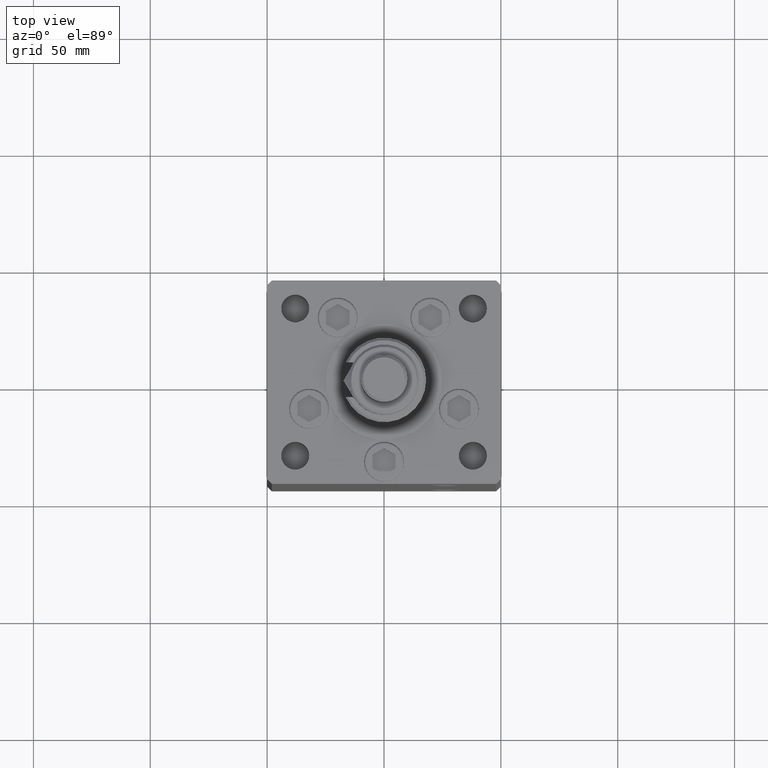
[diagram: clean part render]
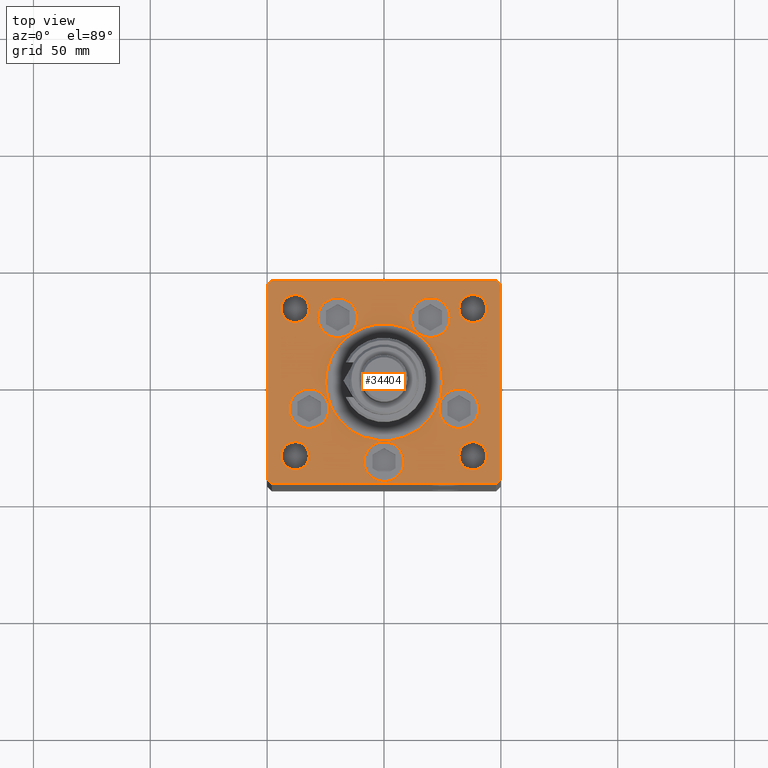
[diagram: same view with one face highlighted and labeled with its STEP entity id]
A machine part, top view. The second image highlights one B-rep face of the part: STEP entity #34404.
In plain terms, the highlighted planar face has unit normal (0, 0, 1).
Its self-contained STEP definition (entity closure, byte-faithful):
#55 = DIRECTION ( 'NONE',  ( -0.7071067811865512365, 0.7071067811865439090, 0.000000000000000000 ) ) ;
#674 = CARTESIAN_POINT ( 'NONE',  ( -38.00000000000000000, 31.50000000000000000, 0.000000000000000000 ) ) ;
#740 = ORIENTED_EDGE ( 'NONE', *, *, #35689, .F. ) ;
#1093 = CARTESIAN_POINT ( 'NONE',  ( -50.00000000000000000, -41.50000000000004263, 0.000000000000000000 ) ) ;
#1363 = CARTESIAN_POINT ( 'NONE',  ( -19.82068048781374969, 27.62499999999998934, 0.000000000000000000 ) ) ;
#1717 = EDGE_CURVE ( 'NONE', #27374, #19167, #29461, .T. ) ;
#1901 = AXIS2_PLACEMENT_3D ( 'NONE', #5175, #43513, #5451 ) ;
#2008 = FACE_BOUND ( 'NONE', #8713, .T. ) ;
#2461 = DIRECTION ( 'NONE',  ( 0.000000000000000000, 0.000000000000000000, 1.000000000000000000 ) ) ;
#2576 = VERTEX_POINT ( 'NONE', #2984 ) ;
#2713 = AXIS2_PLACEMENT_3D ( 'NONE', #16235, #28179, #40968 ) ;
#2798 = DIRECTION ( 'NONE',  ( 0.000000000000000000, 1.000000000000000000, 0.000000000000000000 ) ) ;
#2811 = EDGE_CURVE ( 'NONE', #14152, #37610, #36163, .T. ) ;
#2817 = CARTESIAN_POINT ( 'NONE',  ( 32.05550741379015989, -11.33333333333332860, 0.000000000000000000 ) ) ;
#2822 = VERTEX_POINT ( 'NONE', #7906 ) ;
#2908 = EDGE_CURVE ( 'NONE', #32430, #45811, #33745, .T. ) ;
#2945 = DIRECTION ( 'NONE',  ( -0.7071067811865536790, -0.7071067811865414665, 0.000000000000000000 ) ) ;
#2984 = CARTESIAN_POINT ( 'NONE',  ( -28.32068048781375325, 27.62499999999998934, 0.000000000000000000 ) ) ;
#3345 = EDGE_CURVE ( 'NONE', #34558, #2822, #6008, .T. ) ;
#3509 = VERTEX_POINT ( 'NONE', #12925 ) ;
#3635 = VERTEX_POINT ( 'NONE', #6483 ) ;
#3754 = EDGE_CURVE ( 'NONE', #45811, #33919, #38962, .T. ) ;
#4280 = EDGE_LOOP ( 'NONE', ( #25183, #28379 ) ) ;
#4538 = EDGE_LOOP ( 'NONE', ( #31296, #27993 ) ) ;
#5028 = VERTEX_POINT ( 'NONE', #23353 ) ;
#5175 = CARTESIAN_POINT ( 'NONE',  ( 38.00000000000000000, 31.50000000000000000, 0.000000000000000000 ) ) ;
#5451 = DIRECTION ( 'NONE',  ( 1.000000000000000000, 0.000000000000000000, 0.000000000000000000 ) ) ;
#5601 = CIRCLE ( 'NONE', #13627, 8.500000000000000000 ) ;
#5687 = EDGE_CURVE ( 'NONE', #54939, #11661, #39796, .T. ) ;
#5824 = DIRECTION ( 'NONE',  ( 0.000000000000000000, 0.000000000000000000, 1.000000000000000000 ) ) ;
#6008 = CIRCLE ( 'NONE', #13991, 8.500000000000000000 ) ;
#6187 = CIRCLE ( 'NONE', #47025, 8.500000000000000000 ) ;
#6383 = ORIENTED_EDGE ( 'NONE', *, *, #26646, .F. ) ;
#6483 = CARTESIAN_POINT ( 'NONE',  ( 25.00000000000000000, -3.877276906038844941E-15, 0.000000000000000000 ) ) ;
#6634 = CARTESIAN_POINT ( 'NONE',  ( 32.05550741379015989, -11.33333333333332860, 0.000000000000000000 ) ) ;
#6657 = ORIENTED_EDGE ( 'NONE', *, *, #1717, .T. ) ;
#6728 = FACE_BOUND ( 'NONE', #4538, .T. ) ;
#7107 = CARTESIAN_POINT ( 'NONE',  ( -48.00000000000000000, 43.49999999999997158, 0.000000000000000000 ) ) ;
#7243 = CIRCLE ( 'NONE', #21463, 8.500000000000000000 ) ;
#7511 = CARTESIAN_POINT ( 'NONE',  ( 50.00000000000000000, -41.49999999999992895, 0.000000000000000000 ) ) ;
#7624 = EDGE_CURVE ( 'NONE', #2822, #34558, #9578, .T. ) ;
#7906 = CARTESIAN_POINT ( 'NONE',  ( 11.32068048781375147, 27.62499999999998934, 0.000000000000000000 ) ) ;
#7917 = EDGE_CURVE ( 'NONE', #5028, #40610, #54855, .T. ) ;
#8150 = EDGE_LOOP ( 'NONE', ( #43037, #14925 ) ) ;
#8697 = AXIS2_PLACEMENT_3D ( 'NONE', #6634, #2461, #33011 ) ;
#8713 = EDGE_LOOP ( 'NONE', ( #39123, #740 ) ) ;
#8948 = CARTESIAN_POINT ( 'NONE',  ( -48.00000000000000711, -43.50000000000002842, 0.000000000000000000 ) ) ;
#9347 = CARTESIAN_POINT ( 'NONE',  ( -50.00000000000000711, 41.49999999999999289, 0.000000000000000000 ) ) ;
#9578 = CIRCLE ( 'NONE', #11345, 8.500000000000000000 ) ;
#10082 = CARTESIAN_POINT ( 'NONE',  ( 38.00000000000000711, -31.50000000000000711, 0.000000000000000000 ) ) ;
#10359 = DIRECTION ( 'NONE',  ( -0.000000000000000000, 0.000000000000000000, 1.000000000000000000 ) ) ;
#10553 = CARTESIAN_POINT ( 'NONE',  ( 47.99999999999999289, 43.50000000000000000, 0.000000000000000000 ) ) ;
#11198 = EDGE_CURVE ( 'NONE', #45614, #18839, #41012, .T. ) ;
#11345 = AXIS2_PLACEMENT_3D ( 'NONE', #46133, #23651, #20573 ) ;
#11423 = DIRECTION ( 'NONE',  ( 1.000000000000000000, 0.000000000000000000, 0.000000000000000000 ) ) ;
#11450 = ORIENTED_EDGE ( 'NONE', *, *, #45200, .F. ) ;
#11661 = VERTEX_POINT ( 'NONE', #16633 ) ;
#11689 = CARTESIAN_POINT ( 'NONE',  ( -44.00000000000000000, 31.50000000000000000, 0.000000000000000000 ) ) ;
#12290 = EDGE_CURVE ( 'NONE', #39741, #22174, #6187, .T. ) ;
#12359 = EDGE_LOOP ( 'NONE', ( #51236, #16164 ) ) ;
#12636 = DIRECTION ( 'NONE',  ( 0.7071067811865487940, -0.7071067811865463515, 0.000000000000000000 ) ) ;
#12637 = EDGE_CURVE ( 'NONE', #3635, #39220, #24794, .T. ) ;
#12721 = DIRECTION ( 'NONE',  ( 0.000000000000000000, 0.000000000000000000, 1.000000000000000000 ) ) ;
#12883 = CARTESIAN_POINT ( 'NONE',  ( 0.000000000000000000, -6.938893903907228378E-15, 0.000000000000000000 ) ) ;
#12925 = CARTESIAN_POINT ( 'NONE',  ( -32.00000000000000000, -31.50000000000000711, 0.000000000000000000 ) ) ;
#13077 = ORIENTED_EDGE ( 'NONE', *, *, #2811, .F. ) ;
#13314 = CIRCLE ( 'NONE', #24807, 5.999999999999998224 ) ;
#13410 = CARTESIAN_POINT ( 'NONE',  ( -48.00000000000000711, -43.50000000000002842, 0.000000000000000000 ) ) ;
#13414 = EDGE_CURVE ( 'NONE', #3509, #21440, #42601, .T. ) ;
#13418 = DIRECTION ( 'NONE',  ( 0.7071067811865474617, 0.7071067811865474617, 0.000000000000000000 ) ) ;
#13627 = AXIS2_PLACEMENT_3D ( 'NONE', #1363, #5824, #26931 ) ;
#13650 = VERTEX_POINT ( 'NONE', #23146 ) ;
#13989 = DIRECTION ( 'NONE',  ( -1.000000000000000000, 0.000000000000000000, 0.000000000000000000 ) ) ;
#13991 = AXIS2_PLACEMENT_3D ( 'NONE', #33616, #50580, #25284 ) ;
#14152 = VERTEX_POINT ( 'NONE', #44412 ) ;
#14821 = VECTOR ( 'NONE', #2798, 1000.000000000000000 ) ;
#14925 = ORIENTED_EDGE ( 'NONE', *, *, #12637, .F. ) ;
#14945 = EDGE_LOOP ( 'NONE', ( #44730, #46390 ) ) ;
#15081 = PLANE ( 'NONE',  #40830 ) ;
#15350 = FACE_BOUND ( 'NONE', #14945, .T. ) ;
#15626 = CARTESIAN_POINT ( 'NONE',  ( 32.00000000000000000, 31.50000000000000000, 0.000000000000000000 ) ) ;
#15840 = AXIS2_PLACEMENT_3D ( 'NONE', #19268, #32852, #36222 ) ;
#16151 = DIRECTION ( 'NONE',  ( 0.000000000000000000, 0.000000000000000000, 1.000000000000000000 ) ) ;
#16164 = ORIENTED_EDGE ( 'NONE', *, *, #7624, .F. ) ;
#16231 = AXIS2_PLACEMENT_3D ( 'NONE', #50789, #12721, #51077 ) ;
#16235 = CARTESIAN_POINT ( 'NONE',  ( -38.00000000000000711, -31.50000000000000711, 0.000000000000000000 ) ) ;
#16286 = EDGE_LOOP ( 'NONE', ( #53165, #30186 ) ) ;
#16473 = EDGE_CURVE ( 'NONE', #39220, #3635, #40028, .T. ) ;
#16633 = CARTESIAN_POINT ( 'NONE',  ( -40.55550741379015989, -11.33333333333332682, 0.000000000000000000 ) ) ;
#16917 = EDGE_CURVE ( 'NONE', #37610, #14152, #32956, .T. ) ;
#17851 = DIRECTION ( 'NONE',  ( 1.000000000000000000, 1.156482317317871331E-15, 0.000000000000000000 ) ) ;
#18373 = CARTESIAN_POINT ( 'NONE',  ( -32.05550741379015989, -11.33333333333332860, 0.000000000000000000 ) ) ;
#18761 = EDGE_LOOP ( 'NONE', ( #13077, #19316 ) ) ;
#18780 = CARTESIAN_POINT ( 'NONE',  ( 38.00000000000000711, -31.50000000000000711, 0.000000000000000000 ) ) ;
#18839 = VERTEX_POINT ( 'NONE', #45644 ) ;
#18854 = CARTESIAN_POINT ( 'NONE',  ( 8.500000000000000000, -34.00000000000000000, 0.000000000000000000 ) ) ;
#18977 = FACE_BOUND ( 'NONE', #16286, .T. ) ;
#19062 = ORIENTED_EDGE ( 'NONE', *, *, #20542, .T. ) ;
#19167 = VERTEX_POINT ( 'NONE', #24396 ) ;
#19247 = FACE_BOUND ( 'NONE', #21159, .T. ) ;
#19268 = CARTESIAN_POINT ( 'NONE',  ( -32.05550741379015989, -11.33333333333332860, 0.000000000000000000 ) ) ;
#19316 = ORIENTED_EDGE ( 'NONE', *, *, #16917, .F. ) ;
#19342 = VECTOR ( 'NONE', #17851, 1000.000000000000000 ) ;
#19840 = CIRCLE ( 'NONE', #26940, 6.000000000000005329 ) ;
#19969 = CARTESIAN_POINT ( 'NONE',  ( -32.00000000000000000, 31.50000000000000000, 0.000000000000000000 ) ) ;
#20259 = DIRECTION ( 'NONE',  ( -1.000000000000000000, -2.891205793294678326E-16, 0.000000000000000000 ) ) ;
#20268 = CARTESIAN_POINT ( 'NONE',  ( 0.000000000000000000, -6.938893903907228378E-15, 0.000000000000000000 ) ) ;
#20542 = EDGE_CURVE ( 'NONE', #33919, #27374, #33697, .T. ) ;
#20573 = DIRECTION ( 'NONE',  ( 1.000000000000000000, 0.000000000000000000, 0.000000000000000000 ) ) ;
#20632 = VECTOR ( 'NONE', #13418, 1000.000000000000114 ) ;
#21159 = EDGE_LOOP ( 'NONE', ( #11450, #24897 ) ) ;
#21440 = VERTEX_POINT ( 'NONE', #46867 ) ;
#21463 = AXIS2_PLACEMENT_3D ( 'NONE', #18373, #31427, #52290 ) ;
#21875 = EDGE_CURVE ( 'NONE', #11661, #54939, #7243, .T. ) ;
#22174 = VERTEX_POINT ( 'NONE', #18854 ) ;
#22748 = DIRECTION ( 'NONE',  ( -0.000000000000000000, -0.000000000000000000, -1.000000000000000000 ) ) ;
#23063 = VECTOR ( 'NONE', #55, 999.9999999999998863 ) ;
#23146 = CARTESIAN_POINT ( 'NONE',  ( 47.99999999999999289, 43.50000000000000000, 0.000000000000000000 ) ) ;
#23353 = CARTESIAN_POINT ( 'NONE',  ( 40.55550741379015989, -11.33333333333332860, 0.000000000000000000 ) ) ;
#23651 = DIRECTION ( 'NONE',  ( 0.000000000000000000, 0.000000000000000000, 1.000000000000000000 ) ) ;
#23683 = FACE_BOUND ( 'NONE', #18761, .T. ) ;
#23762 = EDGE_LOOP ( 'NONE', ( #29295, #49178, #19062, #6657, #32539, #41646, #34350, #30307 ) ) ;
#24308 = AXIS2_PLACEMENT_3D ( 'NONE', #2817, #16151, #11423 ) ;
#24396 = CARTESIAN_POINT ( 'NONE',  ( 50.00000000000000000, 41.50000000000000711, 0.000000000000000000 ) ) ;
#24794 = CIRCLE ( 'NONE', #36356, 25.00000000000000000 ) ;
#24807 = AXIS2_PLACEMENT_3D ( 'NONE', #674, #30728, #47681 ) ;
#24897 = ORIENTED_EDGE ( 'NONE', *, *, #12290, .F. ) ;
#24968 = AXIS2_PLACEMENT_3D ( 'NONE', #18780, #39627, #40168 ) ;
#25183 = ORIENTED_EDGE ( 'NONE', *, *, #33167, .T. ) ;
#25284 = DIRECTION ( 'NONE',  ( 1.000000000000000000, 0.000000000000000000, 0.000000000000000000 ) ) ;
#25321 = VERTEX_POINT ( 'NONE', #19969 ) ;
#25952 = DIRECTION ( 'NONE',  ( 0.000000000000000000, 0.000000000000000000, 1.000000000000000000 ) ) ;
#26102 = DIRECTION ( 'NONE',  ( 0.000000000000000000, 0.000000000000000000, 1.000000000000000000 ) ) ;
#26210 = VERTEX_POINT ( 'NONE', #11689 ) ;
#26499 = VERTEX_POINT ( 'NONE', #31263 ) ;
#26538 = DIRECTION ( 'NONE',  ( 0.000000000000000000, 0.000000000000000000, 1.000000000000000000 ) ) ;
#26590 = CARTESIAN_POINT ( 'NONE',  ( -48.00000000000000000, 43.49999999999997158, 0.000000000000000000 ) ) ;
#26646 = EDGE_CURVE ( 'NONE', #2576, #26499, #5601, .T. ) ;
#26744 = AXIS2_PLACEMENT_3D ( 'NONE', #43327, #26102, #39157 ) ;
#26760 = EDGE_LOOP ( 'NONE', ( #41118, #6383 ) ) ;
#26931 = DIRECTION ( 'NONE',  ( 1.000000000000000000, 0.000000000000000000, 0.000000000000000000 ) ) ;
#26940 = AXIS2_PLACEMENT_3D ( 'NONE', #10082, #43434, #13989 ) ;
#26953 = CARTESIAN_POINT ( 'NONE',  ( 23.55550741379015633, -11.33333333333332682, 0.000000000000000000 ) ) ;
#27138 = VECTOR ( 'NONE', #50491, 1000.000000000000000 ) ;
#27374 = VERTEX_POINT ( 'NONE', #29256 ) ;
#27562 = CARTESIAN_POINT ( 'NONE',  ( 0.000000000000000000, 0.000000000000000000, 0.000000000000000000 ) ) ;
#27993 = ORIENTED_EDGE ( 'NONE', *, *, #28381, .F. ) ;
#28179 = DIRECTION ( 'NONE',  ( 0.000000000000000000, 0.000000000000000000, 1.000000000000000000 ) ) ;
#28319 = VERTEX_POINT ( 'NONE', #47881 ) ;
#28379 = ORIENTED_EDGE ( 'NONE', *, *, #49798, .T. ) ;
#28381 = EDGE_CURVE ( 'NONE', #40610, #5028, #51873, .T. ) ;
#28583 = LINE ( 'NONE', #10553, #34694 ) ;
#29256 = CARTESIAN_POINT ( 'NONE',  ( 50.00000000000000000, -41.49999999999992895, 0.000000000000000000 ) ) ;
#29272 = AXIS2_PLACEMENT_3D ( 'NONE', #54883, #25952, #37905 ) ;
#29295 = ORIENTED_EDGE ( 'NONE', *, *, #2908, .T. ) ;
#29461 = LINE ( 'NONE', #7511, #14821 ) ;
#30186 = ORIENTED_EDGE ( 'NONE', *, *, #21875, .F. ) ;
#30280 = CARTESIAN_POINT ( 'NONE',  ( -8.500000000000000000, -34.00000000000000000, 0.000000000000000000 ) ) ;
#30307 = ORIENTED_EDGE ( 'NONE', *, *, #54504, .T. ) ;
#30725 = CARTESIAN_POINT ( 'NONE',  ( 0.000000000000000000, -34.00000000000000000, 0.000000000000000000 ) ) ;
#30728 = DIRECTION ( 'NONE',  ( -0.000000000000000000, -0.000000000000000000, -1.000000000000000000 ) ) ;
#31142 = CARTESIAN_POINT ( 'NONE',  ( 44.00000000000001421, -31.50000000000000711, 0.000000000000000000 ) ) ;
#31152 = AXIS2_PLACEMENT_3D ( 'NONE', #20268, #50290, #50016 ) ;
#31263 = CARTESIAN_POINT ( 'NONE',  ( -11.32068048781375147, 27.62499999999998934, 0.000000000000000000 ) ) ;
#31296 = ORIENTED_EDGE ( 'NONE', *, *, #7917, .F. ) ;
#31427 = DIRECTION ( 'NONE',  ( 0.000000000000000000, 0.000000000000000000, 1.000000000000000000 ) ) ;
#31495 = CARTESIAN_POINT ( 'NONE',  ( -23.55550741379015989, -11.33333333333332860, 0.000000000000000000 ) ) ;
#32291 = CIRCLE ( 'NONE', #54535, 5.999999999999998224 ) ;
#32430 = VERTEX_POINT ( 'NONE', #1093 ) ;
#32539 = ORIENTED_EDGE ( 'NONE', *, *, #33417, .T. ) ;
#32852 = DIRECTION ( 'NONE',  ( 0.000000000000000000, 0.000000000000000000, 1.000000000000000000 ) ) ;
#32956 = CIRCLE ( 'NONE', #1901, 5.999999999999998224 ) ;
#33011 = DIRECTION ( 'NONE',  ( 1.000000000000000000, 0.000000000000000000, 0.000000000000000000 ) ) ;
#33167 = EDGE_CURVE ( 'NONE', #25321, #26210, #13314, .T. ) ;
#33417 = EDGE_CURVE ( 'NONE', #19167, #13650, #39261, .T. ) ;
#33616 = CARTESIAN_POINT ( 'NONE',  ( 19.82068048781374969, 27.62499999999998934, 0.000000000000000000 ) ) ;
#33697 = LINE ( 'NONE', #43144, #20632 ) ;
#33745 = LINE ( 'NONE', #50708, #44163 ) ;
#33919 = VERTEX_POINT ( 'NONE', #41031 ) ;
#34350 = ORIENTED_EDGE ( 'NONE', *, *, #11198, .T. ) ;
#34404 = ADVANCED_FACE ( 'NONE', ( #40085, #53167, #48450, #6728, #19247, #18977, #45073, #23683, #2008, #35655, #15350 ), #15081, .T. ) ;
#34558 = VERTEX_POINT ( 'NONE', #53985 ) ;
#34694 = VECTOR ( 'NONE', #20259, 1000.000000000000000 ) ;
#35539 = DIRECTION ( 'NONE',  ( -1.000000000000000000, 0.000000000000000000, 0.000000000000000000 ) ) ;
#35655 = FACE_OUTER_BOUND ( 'NONE', #23762, .T. ) ;
#35689 = EDGE_CURVE ( 'NONE', #21440, #3509, #39097, .T. ) ;
#35932 = DIRECTION ( 'NONE',  ( 1.000000000000000000, 0.000000000000000000, 0.000000000000000000 ) ) ;
#36163 = CIRCLE ( 'NONE', #49490, 5.999999999999998224 ) ;
#36222 = DIRECTION ( 'NONE',  ( 1.000000000000000000, 0.000000000000000000, 0.000000000000000000 ) ) ;
#36356 = AXIS2_PLACEMENT_3D ( 'NONE', #12883, #50134, #42598 ) ;
#37090 = CARTESIAN_POINT ( 'NONE',  ( 38.00000000000000000, 31.50000000000000000, 0.000000000000000000 ) ) ;
#37610 = VERTEX_POINT ( 'NONE', #15626 ) ;
#37905 = DIRECTION ( 'NONE',  ( 1.000000000000000000, 0.000000000000000000, 0.000000000000000000 ) ) ;
#38059 = EDGE_CURVE ( 'NONE', #28319, #52507, #38299, .T. ) ;
#38299 = CIRCLE ( 'NONE', #24968, 6.000000000000005329 ) ;
#38794 = LINE ( 'NONE', #9347, #27138 ) ;
#38931 = EDGE_CURVE ( 'NONE', #26499, #2576, #50725, .T. ) ;
#38962 = LINE ( 'NONE', #8948, #19342 ) ;
#39023 = CARTESIAN_POINT ( 'NONE',  ( -25.00000000000000000, -6.938893903907228378E-15, 0.000000000000000000 ) ) ;
#39097 = CIRCLE ( 'NONE', #2713, 6.000000000000005329 ) ;
#39123 = ORIENTED_EDGE ( 'NONE', *, *, #13414, .F. ) ;
#39157 = DIRECTION ( 'NONE',  ( 1.000000000000000000, 0.000000000000000000, 0.000000000000000000 ) ) ;
#39220 = VERTEX_POINT ( 'NONE', #39023 ) ;
#39261 = LINE ( 'NONE', #43430, #23063 ) ;
#39627 = DIRECTION ( 'NONE',  ( -0.000000000000000000, -0.000000000000000000, -1.000000000000000000 ) ) ;
#39741 = VERTEX_POINT ( 'NONE', #30280 ) ;
#39796 = CIRCLE ( 'NONE', #15840, 8.500000000000000000 ) ;
#40028 = CIRCLE ( 'NONE', #31152, 25.00000000000000000 ) ;
#40085 = FACE_BOUND ( 'NONE', #8150, .T. ) ;
#40168 = DIRECTION ( 'NONE',  ( -1.000000000000000000, 0.000000000000000000, 0.000000000000000000 ) ) ;
#40610 = VERTEX_POINT ( 'NONE', #26953 ) ;
#40684 = EDGE_CURVE ( 'NONE', #13650, #45614, #28583, .T. ) ;
#40830 = AXIS2_PLACEMENT_3D ( 'NONE', #27562, #10359, #35932 ) ;
#40968 = DIRECTION ( 'NONE',  ( 1.000000000000000000, 0.000000000000000000, 0.000000000000000000 ) ) ;
#40985 = DIRECTION ( 'NONE',  ( 1.000000000000000000, 0.000000000000000000, 0.000000000000000000 ) ) ;
#41012 = LINE ( 'NONE', #7107, #50521 ) ;
#41031 = CARTESIAN_POINT ( 'NONE',  ( 48.00000000000000711, -43.49999999999992184, 0.000000000000000000 ) ) ;
#41118 = ORIENTED_EDGE ( 'NONE', *, *, #38931, .F. ) ;
#41646 = ORIENTED_EDGE ( 'NONE', *, *, #40684, .T. ) ;
#42598 = DIRECTION ( 'NONE',  ( 1.000000000000000000, 0.000000000000000000, 0.000000000000000000 ) ) ;
#42601 = CIRCLE ( 'NONE', #29272, 6.000000000000005329 ) ;
#43037 = ORIENTED_EDGE ( 'NONE', *, *, #16473, .F. ) ;
#43144 = CARTESIAN_POINT ( 'NONE',  ( 48.00000000000000711, -43.49999999999992184, 0.000000000000000000 ) ) ;
#43327 = CARTESIAN_POINT ( 'NONE',  ( -19.82068048781374969, 27.62499999999998934, 0.000000000000000000 ) ) ;
#43430 = CARTESIAN_POINT ( 'NONE',  ( 50.00000000000000000, 41.50000000000000711, 0.000000000000000000 ) ) ;
#43434 = DIRECTION ( 'NONE',  ( -0.000000000000000000, -0.000000000000000000, -1.000000000000000000 ) ) ;
#43513 = DIRECTION ( 'NONE',  ( 0.000000000000000000, 0.000000000000000000, 1.000000000000000000 ) ) ;
#44037 = DIRECTION ( 'NONE',  ( 1.000000000000000000, 0.000000000000000000, 0.000000000000000000 ) ) ;
#44163 = VECTOR ( 'NONE', #12636, 1000.000000000000000 ) ;
#44412 = CARTESIAN_POINT ( 'NONE',  ( 44.00000000000000000, 31.50000000000000000, 0.000000000000000000 ) ) ;
#44730 = ORIENTED_EDGE ( 'NONE', *, *, #48256, .T. ) ;
#45073 = FACE_BOUND ( 'NONE', #4280, .T. ) ;
#45200 = EDGE_CURVE ( 'NONE', #22174, #39741, #50847, .T. ) ;
#45614 = VERTEX_POINT ( 'NONE', #26590 ) ;
#45644 = CARTESIAN_POINT ( 'NONE',  ( -50.00000000000000711, 41.49999999999999289, 0.000000000000000000 ) ) ;
#45811 = VERTEX_POINT ( 'NONE', #13410 ) ;
#46133 = CARTESIAN_POINT ( 'NONE',  ( 19.82068048781374969, 27.62499999999998934, 0.000000000000000000 ) ) ;
#46390 = ORIENTED_EDGE ( 'NONE', *, *, #38059, .T. ) ;
#46867 = CARTESIAN_POINT ( 'NONE',  ( -44.00000000000001421, -31.50000000000000711, 0.000000000000000000 ) ) ;
#47025 = AXIS2_PLACEMENT_3D ( 'NONE', #30725, #26538, #44037 ) ;
#47681 = DIRECTION ( 'NONE',  ( -1.000000000000000000, 0.000000000000000000, 0.000000000000000000 ) ) ;
#47881 = CARTESIAN_POINT ( 'NONE',  ( 32.00000000000000000, -31.50000000000000711, 0.000000000000000000 ) ) ;
#48256 = EDGE_CURVE ( 'NONE', #52507, #28319, #19840, .T. ) ;
#48450 = FACE_BOUND ( 'NONE', #12359, .T. ) ;
#48873 = CARTESIAN_POINT ( 'NONE',  ( -38.00000000000000000, 31.50000000000000000, 0.000000000000000000 ) ) ;
#49178 = ORIENTED_EDGE ( 'NONE', *, *, #3754, .T. ) ;
#49490 = AXIS2_PLACEMENT_3D ( 'NONE', #37090, #54073, #40985 ) ;
#49798 = EDGE_CURVE ( 'NONE', #26210, #25321, #32291, .T. ) ;
#50016 = DIRECTION ( 'NONE',  ( 1.000000000000000000, 0.000000000000000000, 0.000000000000000000 ) ) ;
#50134 = DIRECTION ( 'NONE',  ( 0.000000000000000000, 0.000000000000000000, 1.000000000000000000 ) ) ;
#50290 = DIRECTION ( 'NONE',  ( 0.000000000000000000, 0.000000000000000000, 1.000000000000000000 ) ) ;
#50491 = DIRECTION ( 'NONE',  ( 8.360113137237620037E-17, -1.000000000000000000, 0.000000000000000000 ) ) ;
#50521 = VECTOR ( 'NONE', #2945, 1000.000000000000000 ) ;
#50580 = DIRECTION ( 'NONE',  ( 0.000000000000000000, 0.000000000000000000, 1.000000000000000000 ) ) ;
#50708 = CARTESIAN_POINT ( 'NONE',  ( -50.00000000000000000, -41.50000000000004263, 0.000000000000000000 ) ) ;
#50725 = CIRCLE ( 'NONE', #26744, 8.500000000000000000 ) ;
#50789 = CARTESIAN_POINT ( 'NONE',  ( 0.000000000000000000, -34.00000000000000000, 0.000000000000000000 ) ) ;
#50847 = CIRCLE ( 'NONE', #16231, 8.500000000000000000 ) ;
#51077 = DIRECTION ( 'NONE',  ( 1.000000000000000000, 0.000000000000000000, 0.000000000000000000 ) ) ;
#51236 = ORIENTED_EDGE ( 'NONE', *, *, #3345, .F. ) ;
#51873 = CIRCLE ( 'NONE', #24308, 8.500000000000000000 ) ;
#52290 = DIRECTION ( 'NONE',  ( 1.000000000000000000, 0.000000000000000000, 0.000000000000000000 ) ) ;
#52507 = VERTEX_POINT ( 'NONE', #31142 ) ;
#53165 = ORIENTED_EDGE ( 'NONE', *, *, #5687, .F. ) ;
#53167 = FACE_BOUND ( 'NONE', #26760, .T. ) ;
#53985 = CARTESIAN_POINT ( 'NONE',  ( 28.32068048781375325, 27.62499999999998934, 0.000000000000000000 ) ) ;
#54073 = DIRECTION ( 'NONE',  ( 0.000000000000000000, 0.000000000000000000, 1.000000000000000000 ) ) ;
#54504 = EDGE_CURVE ( 'NONE', #18839, #32430, #38794, .T. ) ;
#54535 = AXIS2_PLACEMENT_3D ( 'NONE', #48873, #22748, #35539 ) ;
#54855 = CIRCLE ( 'NONE', #8697, 8.500000000000000000 ) ;
#54883 = CARTESIAN_POINT ( 'NONE',  ( -38.00000000000000711, -31.50000000000000711, 0.000000000000000000 ) ) ;
#54939 = VERTEX_POINT ( 'NONE', #31495 ) ;